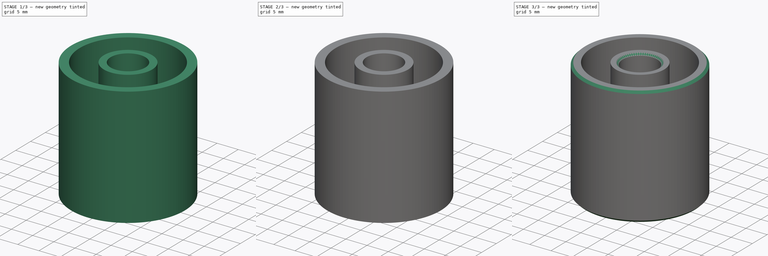
[diagram: build sequence overview — one tinted view per stage of 3, left to right]
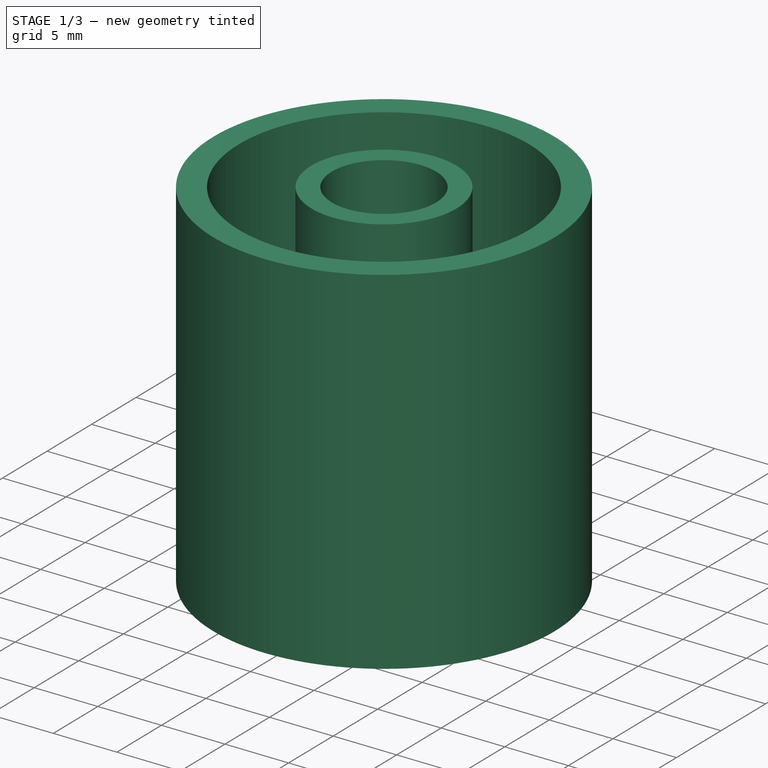
[diagram: stage 1 of 3 — iso view after this stage's code; geometry added in this stage tinted green]
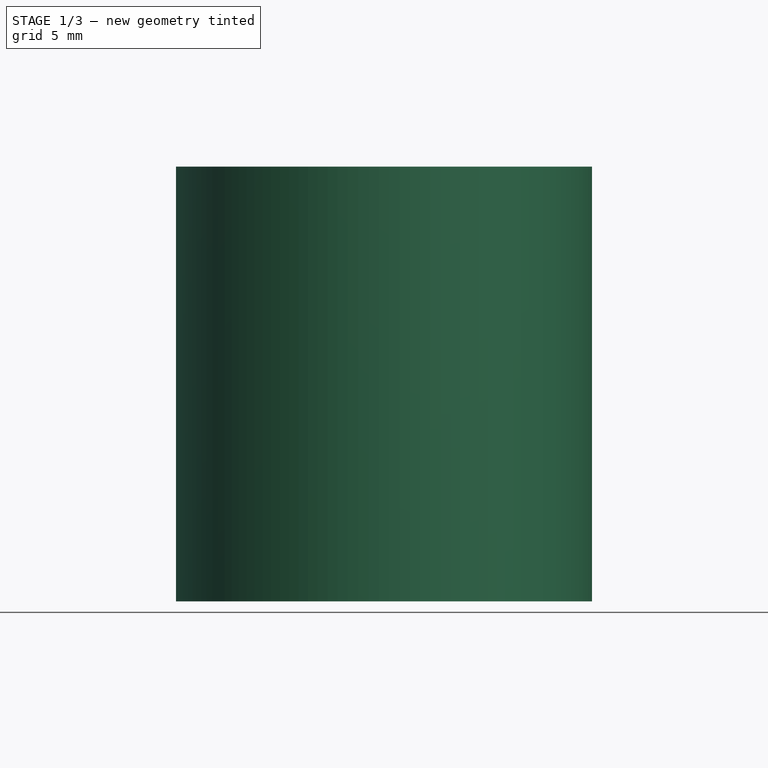
[diagram: stage 1 of 3 — front view after this stage's code; geometry added in this stage tinted green]
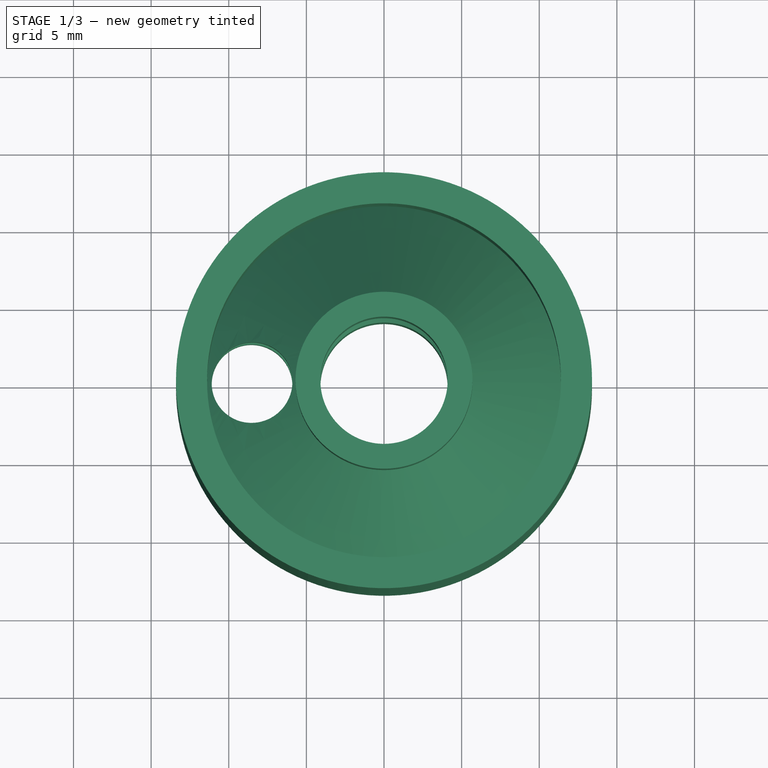
[diagram: stage 1 of 3 — top view after this stage's code; geometry added in this stage tinted green]
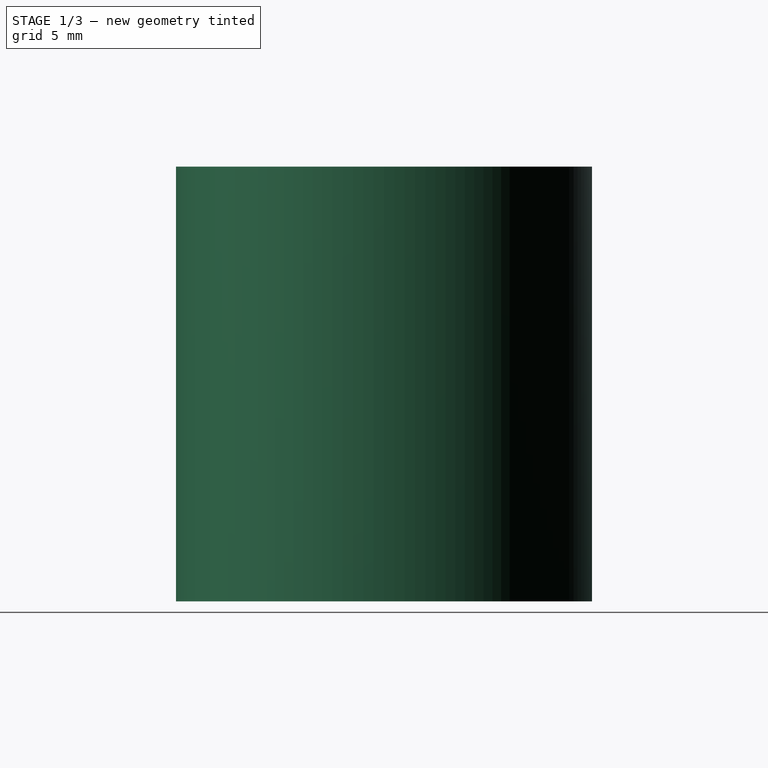
[diagram: stage 1 of 3 — right view after this stage's code; geometry added in this stage tinted green]
FCSTD DOCUMENT  (FreeCAD 0.17R12871 (Git))
Label: CR7-3dpMC
License: All rights reserved
LicenseURL: http://en.wikipedia.org/wiki/All_rights_reserved
objects: Sketcher::SketchObject×2, PartDesign::Chamfer×2, PartDesign::Revolution×1, PartDesign::Pocket×1, PartDesign::PolarPattern×1, PartDesign::Body×1
note: 10 computed .brp shape members not serialized (recipe doc carries the construction recipe); baked Part::Feature solids carry a one-line shape summary decoded from their .brp

FEATURE [Sketcher::SketchObject] Sketch
  MapMode = 5
  Placement = pos=(0,0,0) rot=(1,0,0;1.5708rad)
  Support = -> [XZ_Plane]
  sketch-geometry (18):
    g0: LineSegment StartX=11.8 StartY=13.7 StartZ=0 EndX=11.8 EndY=14.3 EndZ=0
    g1: LineSegment StartX=11.8 StartY=14.3 StartZ=0 EndX=4.1 EndY=22 EndZ=0
    g2: LineSegment StartX=4.1 StartY=22 StartZ=0 EndX=4.1 EndY=28 EndZ=0
    g3: LineSegment StartX=4.1 StartY=28 StartZ=0 EndX=5.7 EndY=28 EndZ=0
    g4: LineSegment StartX=11.4 StartY=17 StartZ=0 EndX=11.4 EndY=28 EndZ=0
    g5: LineSegment StartX=11.4 StartY=28 StartZ=0 EndX=13.4 EndY=28 EndZ=0
    g6: LineSegment StartX=13.4 StartY=0 StartZ=0 EndX=11.4 EndY=0 EndZ=0
    g7: LineSegment StartX=11.4 StartY=0 StartZ=0 EndX=11.4 EndY=11 EndZ=0
    g8: LineSegment StartX=11.4 StartY=11 StartZ=0 EndX=5.7 EndY=5.3 EndZ=0
    g9: LineSegment StartX=5.7 StartY=5.3 StartZ=0 EndX=5.7 EndY=0 EndZ=0
    g10: LineSegment StartX=5.7 StartY=0 StartZ=0 EndX=4.1 EndY=0 EndZ=0
    g11: LineSegment [constr] StartX=5.7 StartY=28 StartZ=0 EndX=11.4 EndY=28 EndZ=0
    g12: LineSegment [constr] StartX=4.1 StartY=22 StartZ=0 EndX=4.1 EndY=6 EndZ=0
    g13: LineSegment StartX=13.4 StartY=28 StartZ=0 EndX=13.4 EndY=0 EndZ=0
    g14: LineSegment StartX=5.7 StartY=28 StartZ=0 EndX=5.7 EndY=22.7 EndZ=0
    g15: LineSegment StartX=5.7 StartY=22.7 StartZ=0 EndX=11.4 EndY=17 EndZ=0
    g16: LineSegment StartX=4.1 StartY=0 StartZ=0 EndX=4.1 EndY=6 EndZ=0
    g17: LineSegment StartX=4.1 StartY=6 StartZ=0 EndX=11.8 EndY=13.7 EndZ=0
  constraints (52):
    c: PointOnObject(g10,g-1)
    c: Vertical(g0)
    c: Coincident(g1,g2)
    c: Vertical(g2)
    c: Coincident(g2,g3)
    c: Vertical(g4)
    c: Coincident(g4,g5)
    c: Horizontal(g5)
    c: PointOnObject(g13,g-1)
    c: Coincident(g13,g6)
    c: PointOnObject(g6,g-1)
    c: Coincident(g6,g7)
    c: Vertical(g7)
    c: Coincident(g7,g8)
    c: Coincident(g8,g9)
    c: PointOnObject(g9,g-1)
    c: Vertical(g9)
    c: Coincident(g9,g10)
    c: Horizontal(g3)
    c: Coincident(g11,g3)
    c: Coincident(g11,g4)
    c: Horizontal(g11)
    c: Coincident(g12,g1)
    c: Vertical(g12)
    c: Angle(g1) = 2.35619
    c: DistanceY(g13,g5) = 28
    c: DistanceX(g3,g3) = 1.6
    c: DistanceX(g-1,g2) = 4.1
    c: DistanceX(g5,g5) = 2
    c: DistanceX(g-1,g5) = 13.4
    c: DistanceX(g1,g5) = 1.6
    c: Equal(g10,g3)
    c: Equal(g6,g5)
    c: DistanceY(g9,g9) = 5.3
    c: Coincident(g13,g5)
    c: Coincident(g1,g0)
    c: Coincident(g3,g14)
    c: Vertical(g14)
    c: Coincident(g14,g15)
    c: Coincident(g15,g4)
    c: Coincident(g10,g16)
    c: Coincident(g16,g12)
    c: Vertical(g16)
    c: Coincident(g16,g17)
    c: Coincident(g17,g0)
    c: Angle(g8) = -2.35619
    c: Parallel(g8,g17)
    c: Parallel(g1,g15)
    c: Equal(g2,g16)
    c: DistanceY(g16,g16) = 6
    c: Equal(g9,g14)
    c: Vertical(g13)
FEATURE [PartDesign::Revolution] Revolution
  Angle = 360
  Axis = (0,0,1)
  Base = (0,0,0)
  Placement = pos=(0,0,0) rot=(1,0,0;1.5708rad)
  Profile = -> Sketch
  ReferenceAxis = -> Sketch [V_Axis]
  Reversed = true
FEATURE [Sketcher::SketchObject] Sketch001
  MapMode = 5
  Placement = pos=(0,-3e-12,28) rot=(0,0,1;-3.14159rad)
  Support = -> [Revolution]
  sketch-geometry (1):
    g0: Circle CenterX=8.5 CenterY=0 CenterZ=0 NormalX=0 NormalY=0 NormalZ=1 AngleXU=0 Radius=2.6
  constraints (3):
    c: PointOnObject(g0,g-1)
    c: DistanceX(g-1,g0) = 8.5
    c: Radius(g0) = 2.6
FEATURE [PartDesign::Pocket] Pocket
  BaseFeature = -> Revolution
  Length = 5
  Placement = pos=(0,0,0) rot=(1,0,0;1.5708rad)
  Profile = -> Sketch001
  Type = 1
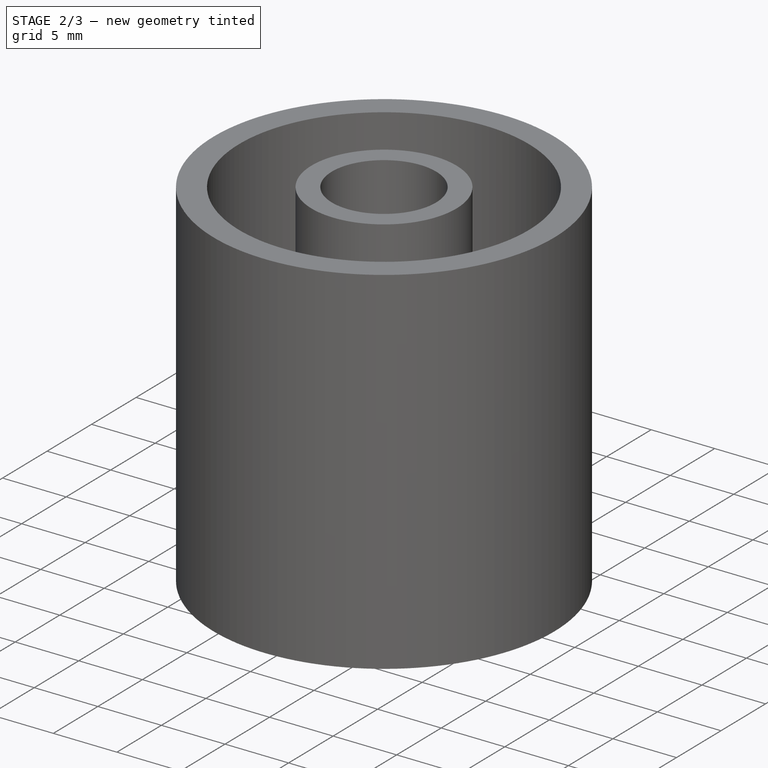
[diagram: stage 2 of 3 — iso view after this stage's code; geometry added in this stage tinted green]
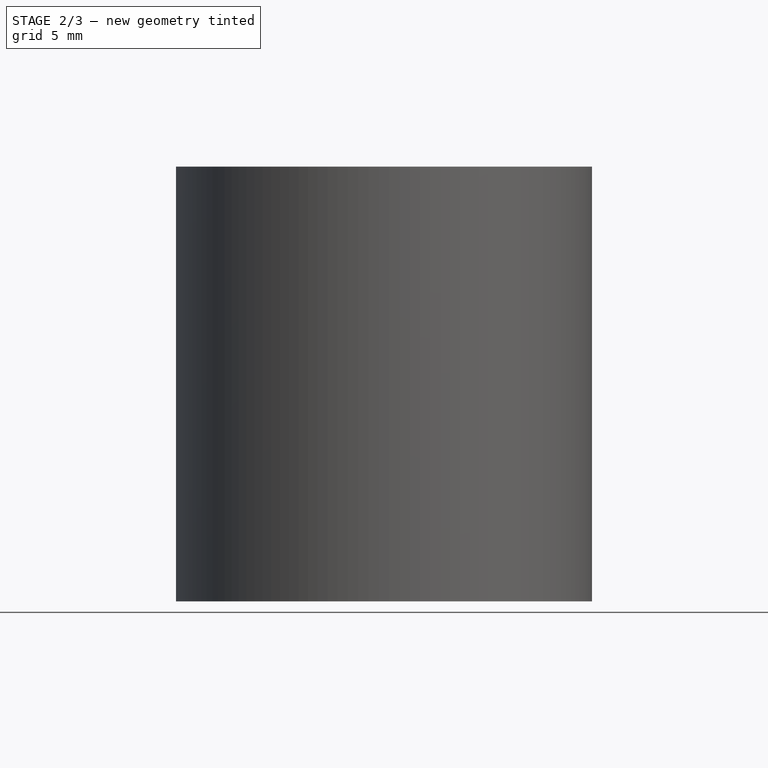
[diagram: stage 2 of 3 — front view after this stage's code; geometry added in this stage tinted green]
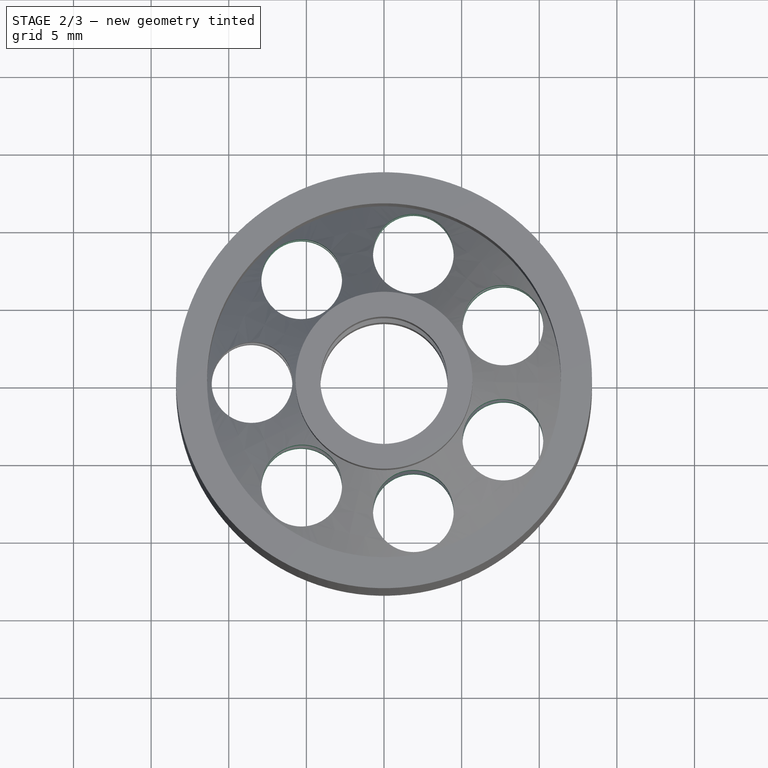
[diagram: stage 2 of 3 — top view after this stage's code; geometry added in this stage tinted green]
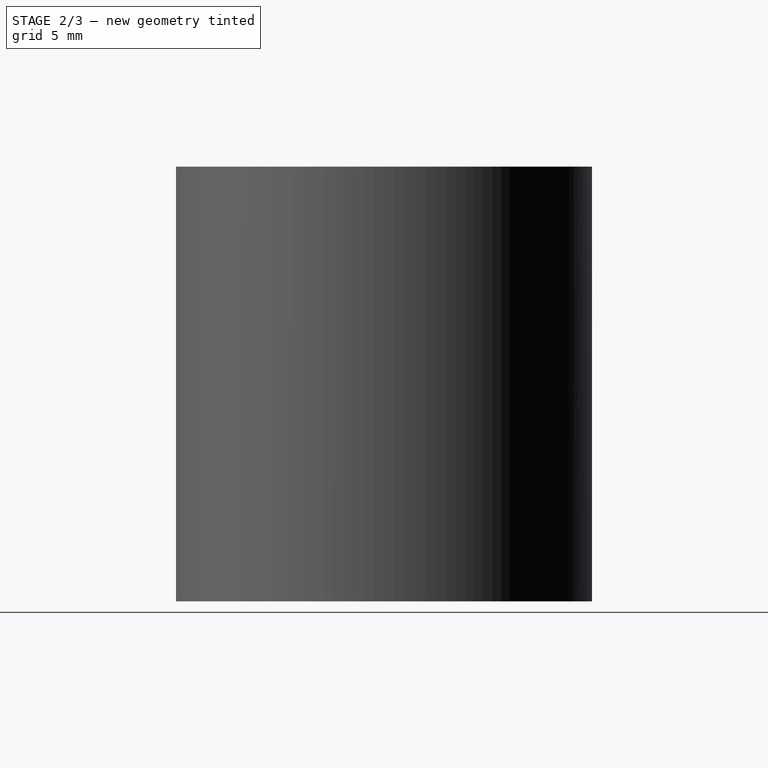
[diagram: stage 2 of 3 — right view after this stage's code; geometry added in this stage tinted green]
FEATURE [PartDesign::PolarPattern] PolarPattern
  Angle = 360
  Axis = -> Sketch001 [N_Axis]
  Occurrences = 7
  Originals = -> [Pocket]
  Placement = pos=(0,0,0) rot=(1,0,0;1.5708rad)
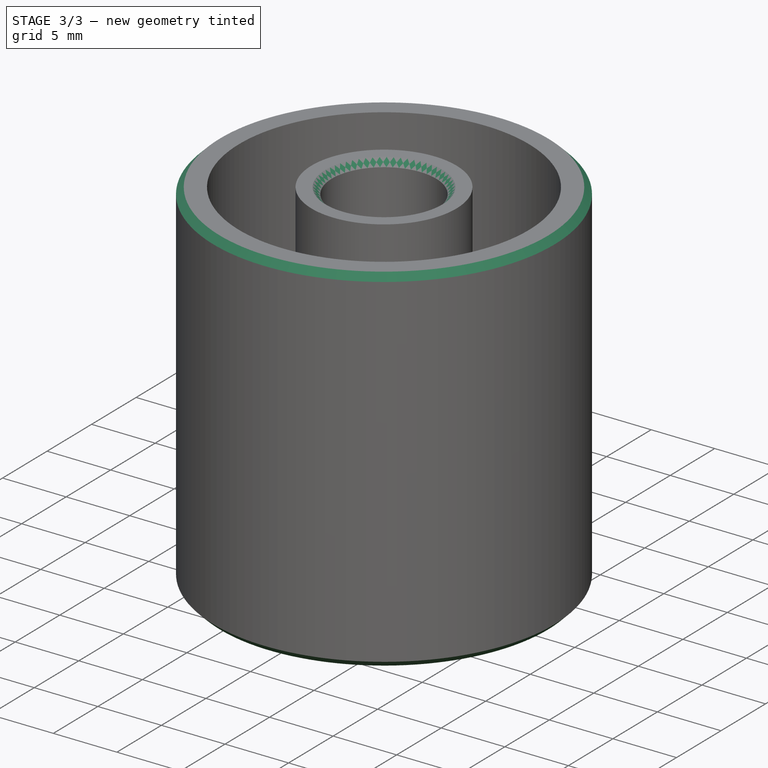
[diagram: stage 3 of 3 — iso view after this stage's code; geometry added in this stage tinted green]
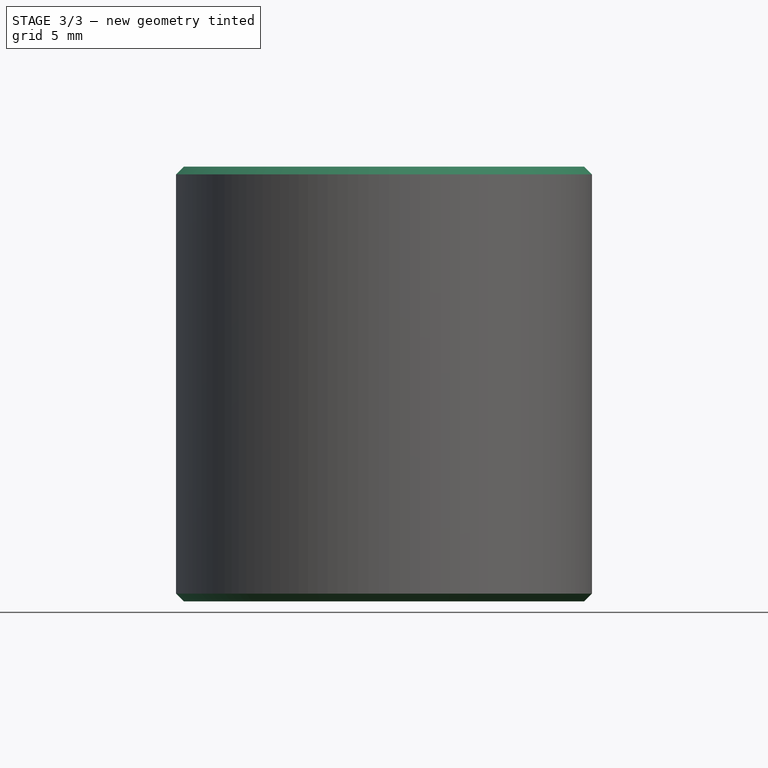
[diagram: stage 3 of 3 — front view after this stage's code; geometry added in this stage tinted green]
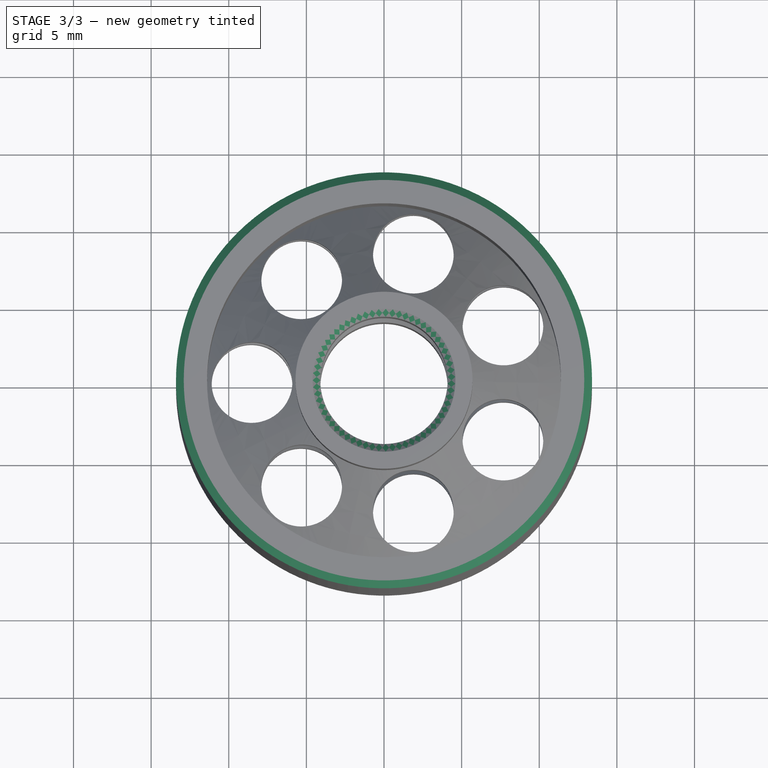
[diagram: stage 3 of 3 — top view after this stage's code; geometry added in this stage tinted green]
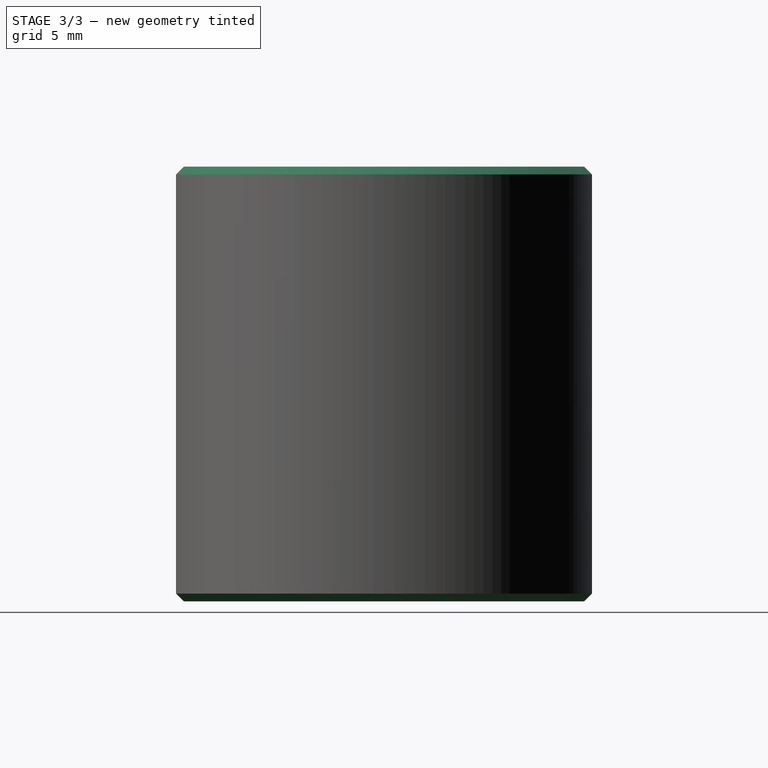
[diagram: stage 3 of 3 — right view after this stage's code; geometry added in this stage tinted green]
FEATURE [PartDesign::Chamfer] Chamfer
  Base = -> PolarPattern [Edge38,Edge22]
  BaseFeature = -> PolarPattern
  Placement = pos=(0,0,0) rot=(1,0,0;1.5708rad)
  Size = 0.5
FEATURE [PartDesign::Chamfer] Chamfer001
  Base = -> Chamfer [Edge73,Edge68]
  BaseFeature = -> Chamfer
  Placement = pos=(0,0,0) rot=(1,0,0;1.5708rad)
  Size = 0.5
FEATURE [PartDesign::Body] Body
  Group = -> [Sketch,Revolution,Sketch001,Pocket,PolarPattern,Chamfer,Chamfer001]
  Origin = -> Origin
  Tip = -> Chamfer001
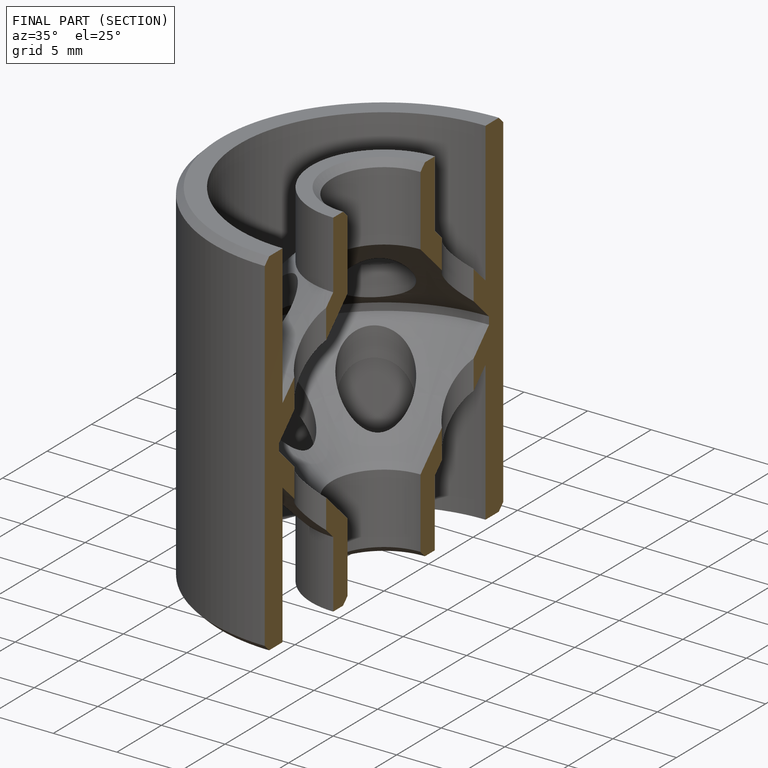
[diagram: finished part — half-section view (interior)]
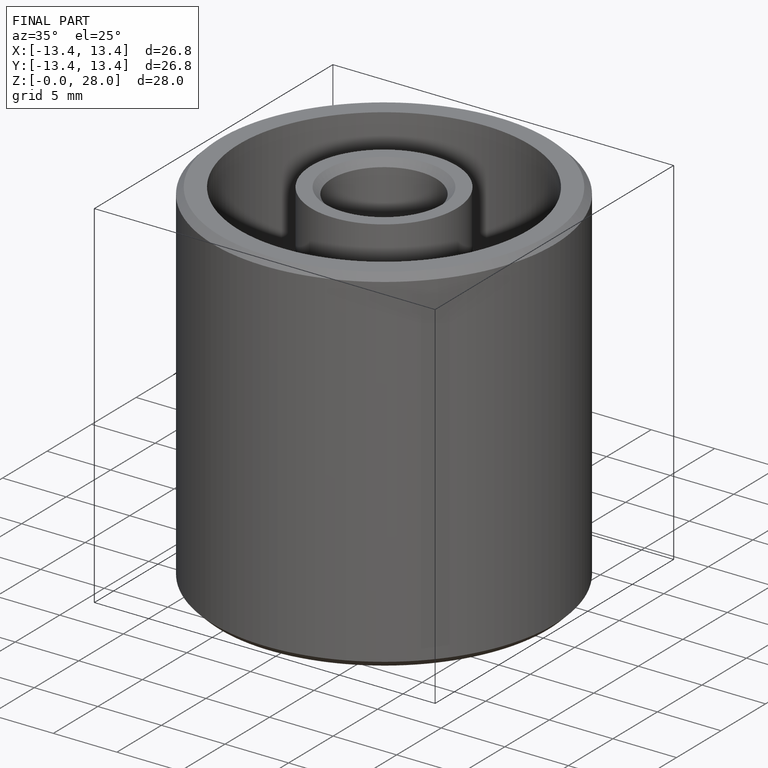
[diagram: finished part — iso view with bounding-box wireframe]
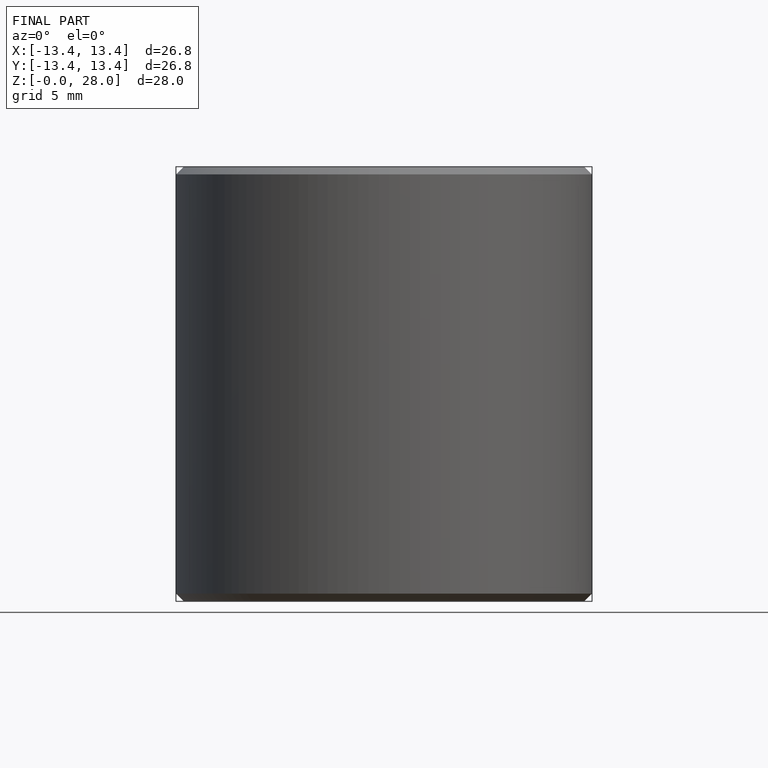
[diagram: finished part — front view with bounding-box wireframe]
